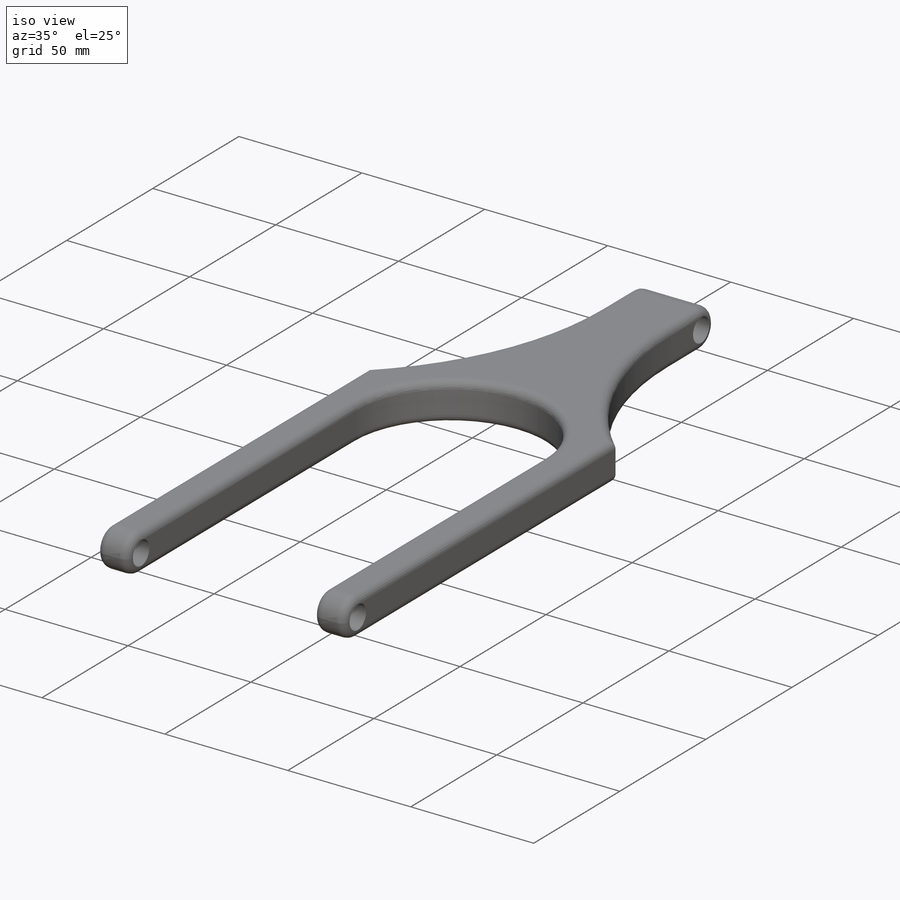
[diagram: iso view]
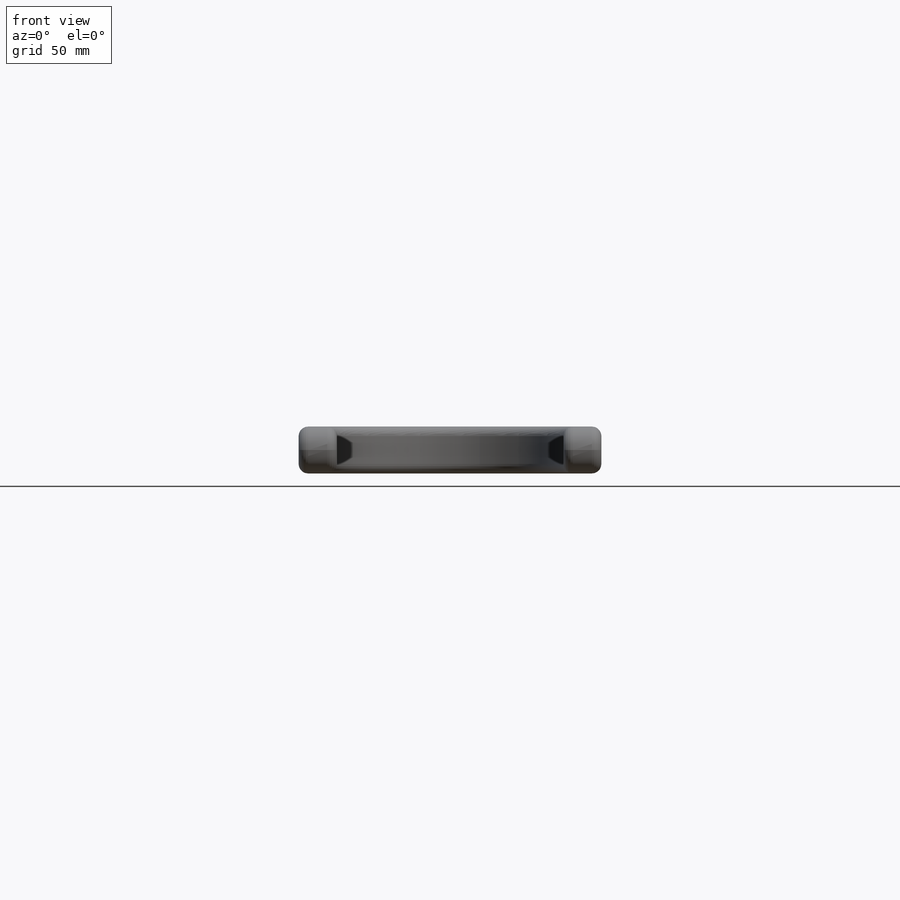
[diagram: front view]
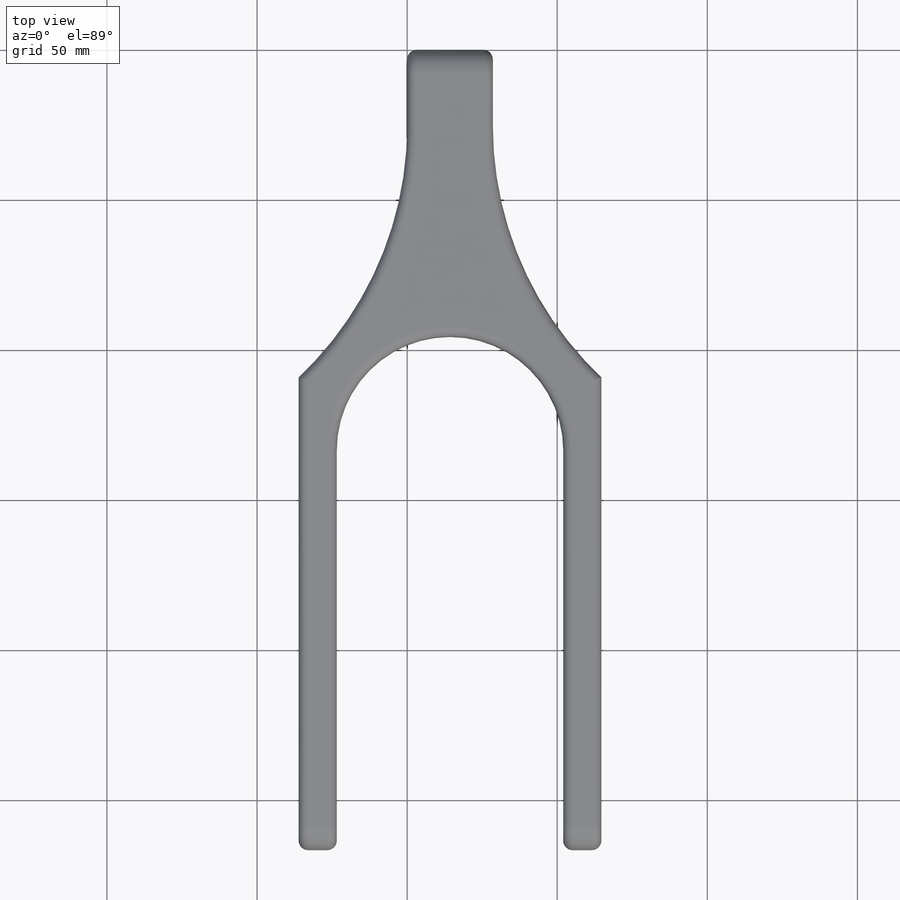
[diagram: top view]
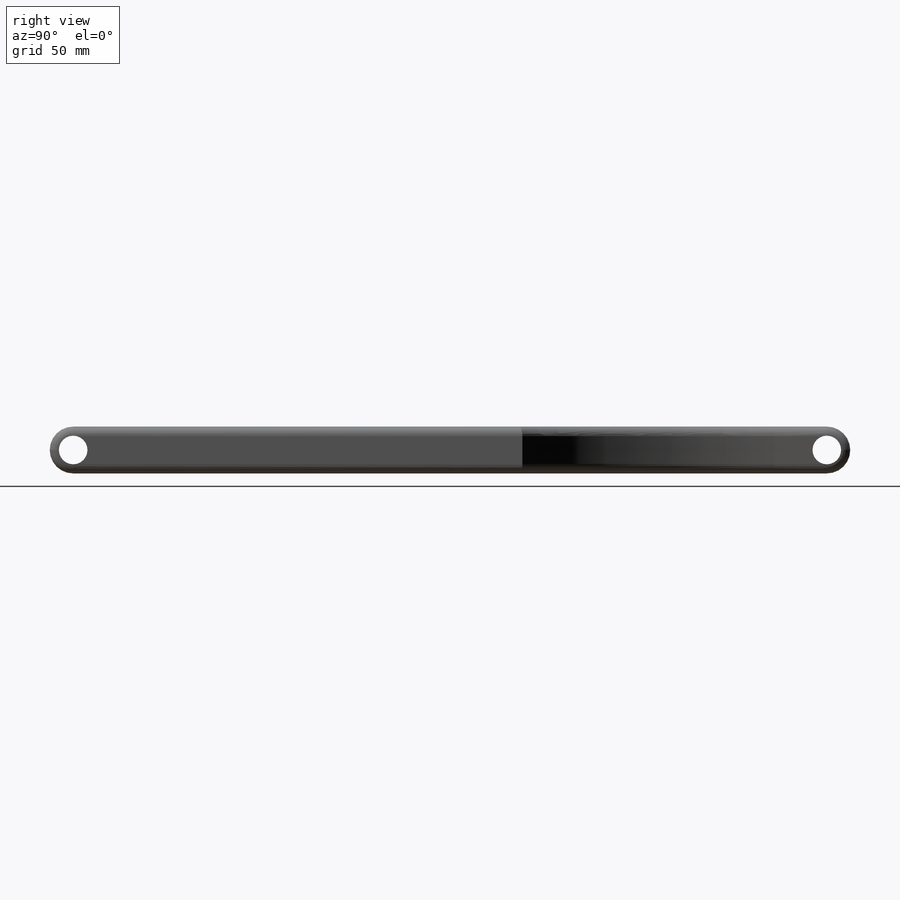
[diagram: right view]
SOLIDWORKS PART (.sldprt)
format: sldprt  version: not decoded by parser v0  size: 344,576 bytes
history: native  units: mm
features: sketch x3, fillet x2, cut_extrude x2, material x1, extrude x1 (+11 scaffold rows collapsed)
feature tree (20):
  scaffold x11  (default folders/planes/origin — collapsed)
  material  "Material <not specified>"
  sketch  "Sketch1"  dims[c1.D8=~136.255406mm c1.D1=~28.925516mm c2.D1=~0.011671deg c3.D1=266.7mm c3.D2=12.7mm c3.D3=~52.919763mm c4.D3=~0.011671deg c5.D3=~52.465404mm c6.D3=~0.011671deg c7.D3=50.8mm c7.D4=25.4mm c7.D5=133.35mm c7.D6=25.4mm c7.D7=157.48mm c7.D8=381.0mm c7.D9=25.4mm c8.D3=12.7mm c8.D9=28.5496mm c8.D10=100.838mm c8.D2=~129.538045mm]
  extrude  "Boss-Extrude1"  Depth=15.621mm
  fillet  "Fillet1"  Radius=7.8105mm
  sketch  "Sketch2"  dims[D1=9.525mm]
  cut_extrude  "Cut-Extrude1"  [1 undecoded]
  sketch  "Sketch3"  dims[D1=9.525mm]
  cut_extrude  "Cut-Extrude2"  [1 undecoded]
  fillet  "Fillet2"  Radius=3.175mm
decode coverage: 6 of 8 modeling features carry decoded parameters
note: ~ marks probable driven/reference dimensions
note: 2 parameter values undecoded
note: suppression state not decoded; provenance and decode notes live in map.json
